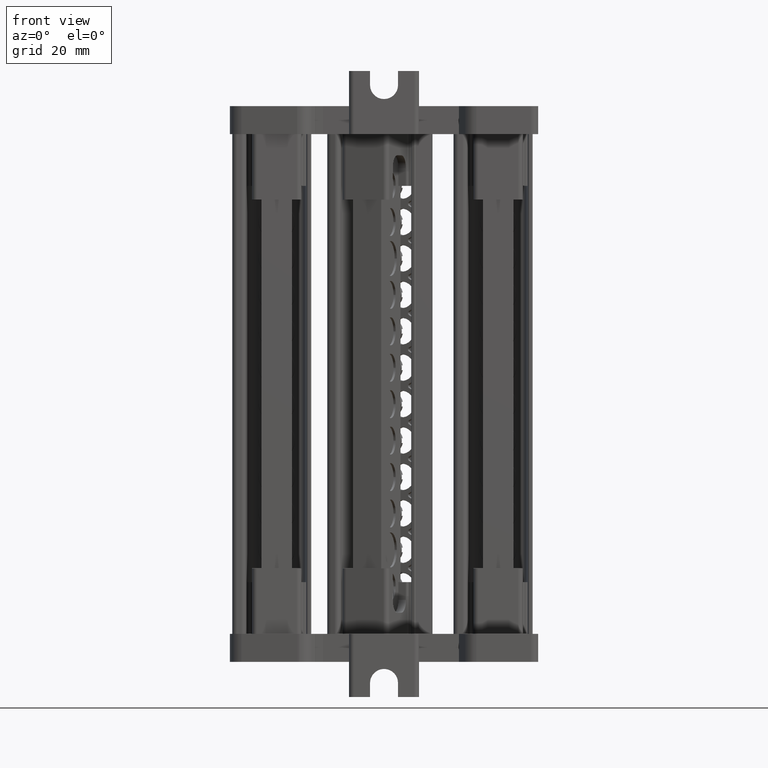
[diagram: clean part render]
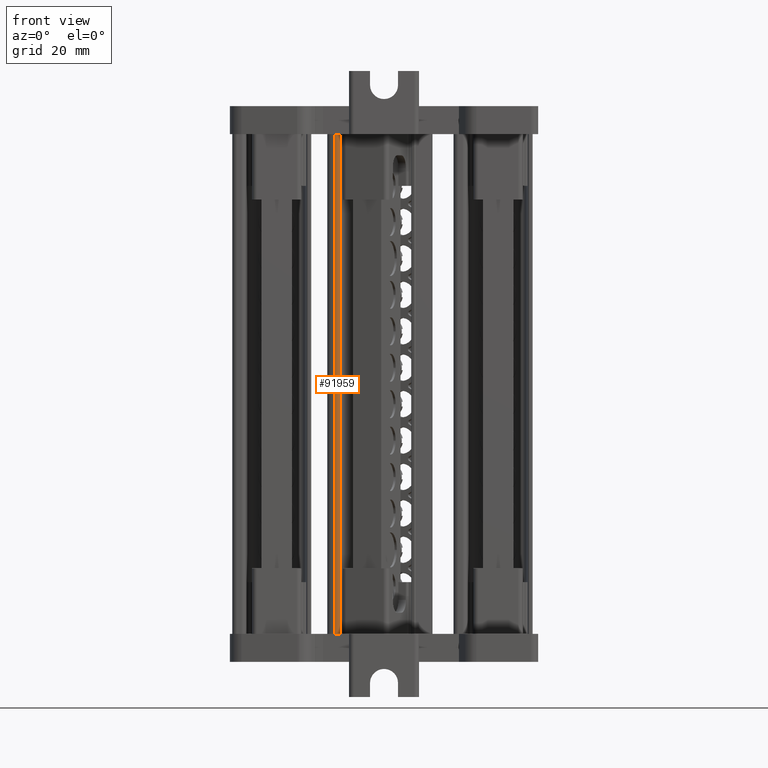
[diagram: same view with one face highlighted and labeled with its STEP entity id]
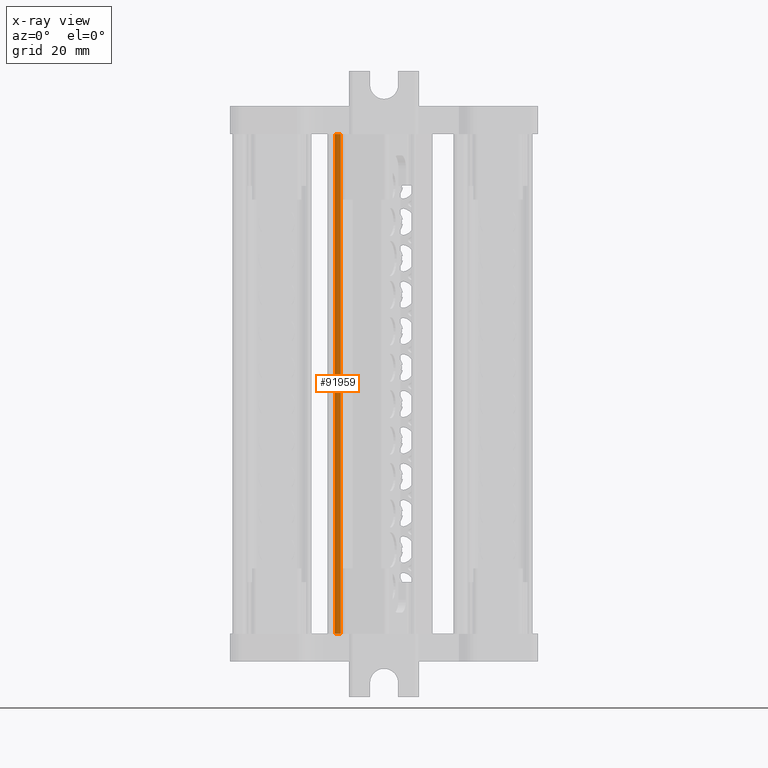
[diagram: x-ray of the same camera — body ghosted, the highlighted face saturated]
A machine part, front view. The second image highlights one B-rep face of the part: STEP entity #91959.
The next image is the same camera in x-ray: the body ghosted, the highlighted face saturated — about 0% of this face is hidden behind the body in this view.
In plain terms, the highlighted cylindrical surface (edge-blend (fillet) strip) has radius 0.9996 mm, axis along (-0, 0, -1).
Its self-contained STEP definition (entity closure, byte-faithful):
#4484 = EDGE_CURVE ( 'NONE', #46475, #23574, #83869, .T. ) ;
#4519 = EDGE_CURVE ( 'NONE', #46475, #94522, #18962, .T. ) ;
#4572 = EDGE_CURVE ( 'NONE', #23616, #94522, #83928, .T. ) ;
#18580 = CARTESIAN_POINT ( 'NONE',  ( -308.1099786858068200, 209.0864530295869200, 100.3073473306244500 ) ) ;
#18637 = DIRECTION ( 'NONE',  ( -2.717898714017822300E-013, 1.005217999471563900E-013, -1.000000000000000000 ) ) ;
#18664 = DIRECTION ( 'NONE',  ( -1.000000000000000000, 0.0000000000000000000, 2.776609307536596600E-013 ) ) ;
#18935 = DIRECTION ( 'NONE',  ( -2.835521014262095100E-013, 1.088451282902602600E-013, -1.000000000000000000 ) ) ;
#18962 = LINE ( 'NONE', #19028, #83839 ) ;
#19028 = CARTESIAN_POINT ( 'NONE',  ( -307.1767515298452600, 208.7282217592004700, 99.38740414880729200 ) ) ;
#22405 = DIRECTION ( 'NONE',  ( 2.717898714017822300E-013, -1.005217999471563900E-013, 1.000000000000000000 ) ) ;
#22444 = CARTESIAN_POINT ( 'NONE',  ( -308.1099786858358700, 209.0864530295976900, -6.687066813447856400 ) ) ;
#22450 = DIRECTION ( 'NONE',  ( -1.000000000000000000, 2.776609307536596700E-014, 2.715870978934233600E-013 ) ) ;
#23574 = VERTEX_POINT ( 'NONE', #48236 ) ;
#23616 = VERTEX_POINT ( 'NONE', #48213 ) ;
#34351 = EDGE_LOOP ( 'NONE', ( #76971, #76983, #76970, #76964 ) ) ;
#46475 = VERTEX_POINT ( 'NONE', #67011 ) ;
#48213 = CARTESIAN_POINT ( 'NONE',  ( -308.4518683362366000, 208.1471160109221000, -6.687066813447857200 ) ) ;
#48236 = CARTESIAN_POINT ( 'NONE',  ( -308.4518683362077800, 208.1471160109111300, 100.3073473306246200 ) ) ;
#52039 = VECTOR ( 'NONE', #60020, 1000.000000000000000 ) ;
#59994 = LINE ( 'NONE', #60002, #52039 ) ;
#60002 = CARTESIAN_POINT ( 'NONE',  ( -308.4518683362075000, 208.1471160109113000, 100.3870253609197900 ) ) ;
#60020 = DIRECTION ( 'NONE',  ( -2.717898714017822300E-013, 1.005217999471563900E-013, -1.000000000000000000 ) ) ;
#64627 = AXIS2_PLACEMENT_3D ( 'NONE', #73586, #73542, #73543 ) ;
#67011 = CARTESIAN_POINT ( 'NONE',  ( -307.1767515298449200, 208.7282217592004700, 100.3073473306241300 ) ) ;
#73540 = FACE_OUTER_BOUND ( 'NONE', #34351, .T. ) ;
#73542 = DIRECTION ( 'NONE',  ( -2.717898714017822300E-013, 1.005217999471563900E-013, -1.000000000000000000 ) ) ;
#73543 = DIRECTION ( 'NONE',  ( -1.000000000000000000, 0.0000000000000000000, 2.776609307536596600E-013 ) ) ;
#73562 = CYLINDRICAL_SURFACE ( 'NONE', #64627, 0.9996212121126113500 ) ;
#73586 = CARTESIAN_POINT ( 'NONE',  ( -308.1099786858068200, 209.0864530295869200, 100.3870253609197900 ) ) ;
#76964 = ORIENTED_EDGE ( 'NONE', *, *, #4484, .T. ) ;
#76970 = ORIENTED_EDGE ( 'NONE', *, *, #4519, .F. ) ;
#76971 = ORIENTED_EDGE ( 'NONE', *, *, #90834, .T. ) ;
#76983 = ORIENTED_EDGE ( 'NONE', *, *, #4572, .T. ) ;
#81349 = CARTESIAN_POINT ( 'NONE',  ( -307.1767515298753300, 208.7282217592119800, -6.687066813448070400 ) ) ;
#83839 = VECTOR ( 'NONE', #18935, 1000.000000000000000 ) ;
#83866 = AXIS2_PLACEMENT_3D ( 'NONE', #18580, #18637, #18664 ) ;
#83869 = CIRCLE ( 'NONE', #83866, 0.9996212121126113500 ) ;
#83928 = CIRCLE ( 'NONE', #83931, 0.9996212121126113500 ) ;
#83931 = AXIS2_PLACEMENT_3D ( 'NONE', #22444, #22405, #22450 ) ;
#90834 = EDGE_CURVE ( 'NONE', #23574, #23616, #59994, .T. ) ;
#91959 = ADVANCED_FACE ( 'NONE', ( #73540 ), #73562, .T. ) ;
#94522 = VERTEX_POINT ( 'NONE', #81349 ) ;